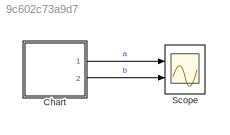
MODEL slx_9c602c73a9d7
KIND model
CONFIG AbsTol = auto
CONFIG EnableMultiTasking = off
CONFIG FixedStep = 1
CONFIG MaxStep = auto
CONFIG MinStep = auto
CONFIG RelTol = 1e-3
CONFIG SampleTimeConstraint = Unconstrained
CONFIG Solver = FixedStepDiscrete
CONFIG SolverName = FixedStepDiscrete
CONFIG StartTime = 0.0
CONFIG StopTime = 10.0
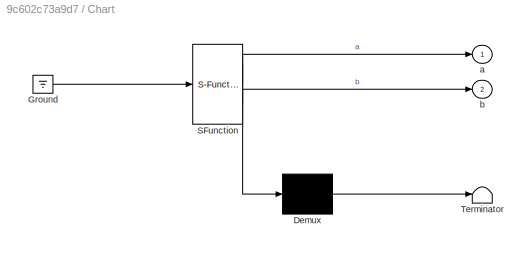
BLOCK [SubSystem] Chart
  ErrorFcn = Stateflow.Translate.translate
  PermitHierarchicalResolution = ExplicitOnly
  Ports = [0, 2]
  RequestExecContextInheritance = off
  SFBlockType = Chart
  TreatAsAtomicUnit = on
BLOCK [Demux] Chart/ Demux 
  Outputs = 1
  Ports = [1, 1]
BLOCK [Ground] Chart/ Ground 
BLOCK [S-Function] Chart/ SFunction 
  EnableBusSupport = on
  FunctionName = sf_sfun
  PortCounts = [1 3]
  Ports = [1, 3]
  SFcnIsStateOwnerBlock = off
  SFunctionDeploymentMode = off
  Tag = Stateflow S-Function jc_0741 3
BLOCK [Terminator] Chart/ Terminator 
BLOCK [Outport] Chart/a
  IconDisplay = Port number
BLOCK [Outport] Chart/b
  IconDisplay = Port number
  Port = 2
BLOCK [Scope] Scope
  Floating = off
  NumInputPorts = 2
  Ports = [2]
  ScopeSpecificationString = Simulink.scopes.TimeScopeBlockCfg('CurrentConfiguration', extmgr.ConfigurationSet(extmgr.Configuration('Core','General UI',true),extmgr.Configuration('Core','Source UI',true),extmgr.Configuration('Sources','WiredSimulink',true),extmgr.Configuration('Visuals','Time Domain',true,'SerializedDisplays',{struct('MinYLimReal','-0.625','MaxYLimReal','5.625','YLabelReal','','MinYLimMag','0.00000','MaxYLimM...<+1955ch>
LINE Chart:1 -> Scope:1
LINE Chart:2 -> Scope:2
CHART Chart states=6 transitions=5
  STATE_LABEL 'A'
  STATE_LABEL 'START\ndu:\n a = a+1'
  STATE_LABEL 'Stop\nen:\n a = 0;'
  STATE_LABEL '[a == 5]'
  STATE_LABEL 'START\ndu:\n a = a+1'
  STATE_LABEL 'Stop\nen:\n a = 0;'
  STATE_LABEL 'B'
  STATE_LABEL 'START1\ndu:\n'
  STATE_LABEL 'Stop1\nen:\n b = 0;'
  STATE_LABEL '{b = b+1}'
  STATE_LABEL '[b == 5]'
  STATE_LABEL 'START1\ndu:\n'
  STATE_LABEL 'Stop1\nen:\n b = 0;'
